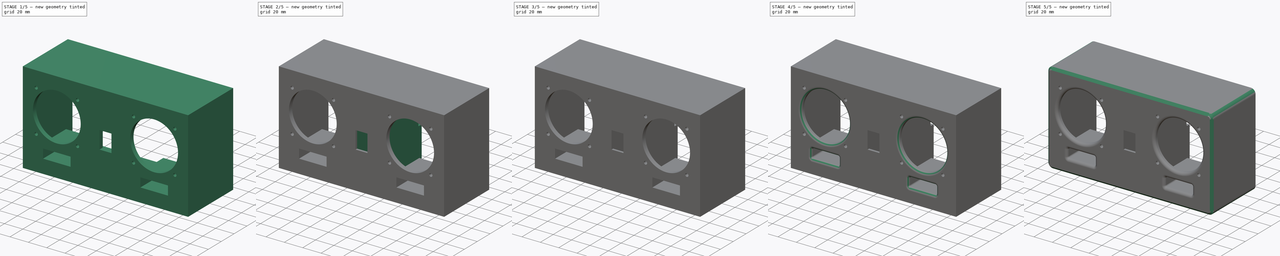
[diagram: build sequence overview — one tinted view per stage of 5, left to right]
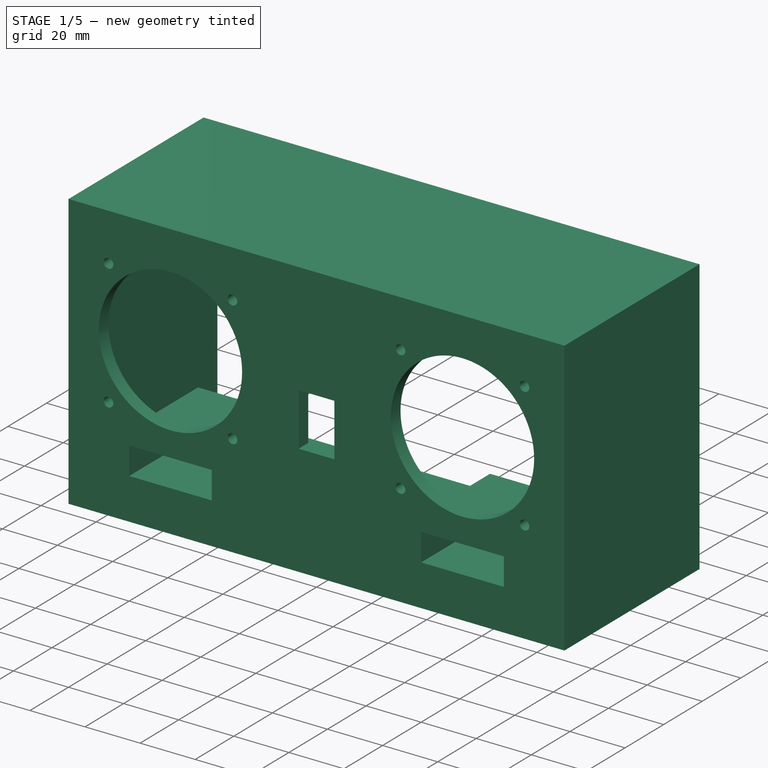
[diagram: stage 1 of 5 — iso view after this stage's code; geometry added in this stage tinted green]
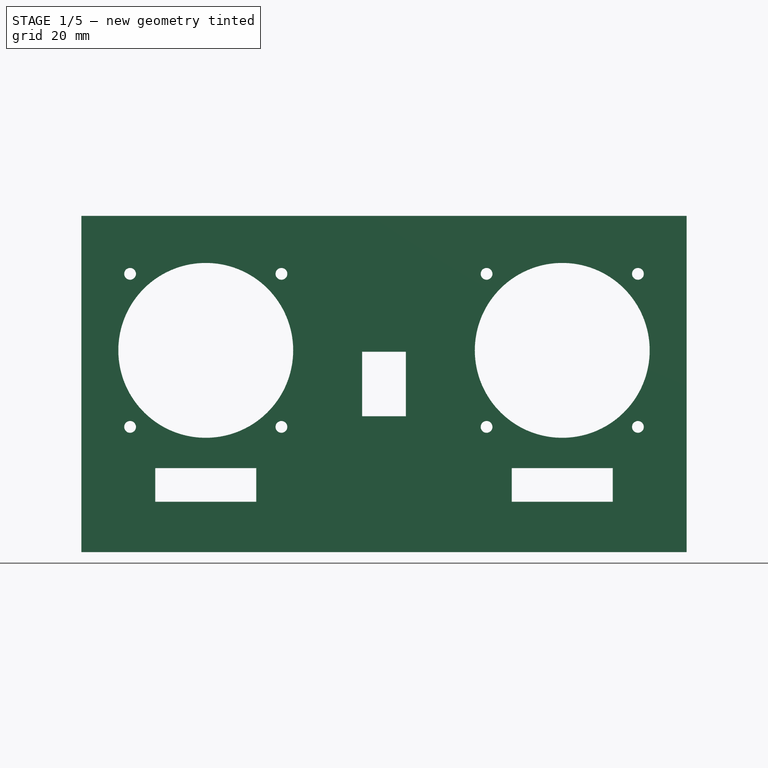
[diagram: stage 1 of 5 — front view after this stage's code; geometry added in this stage tinted green]
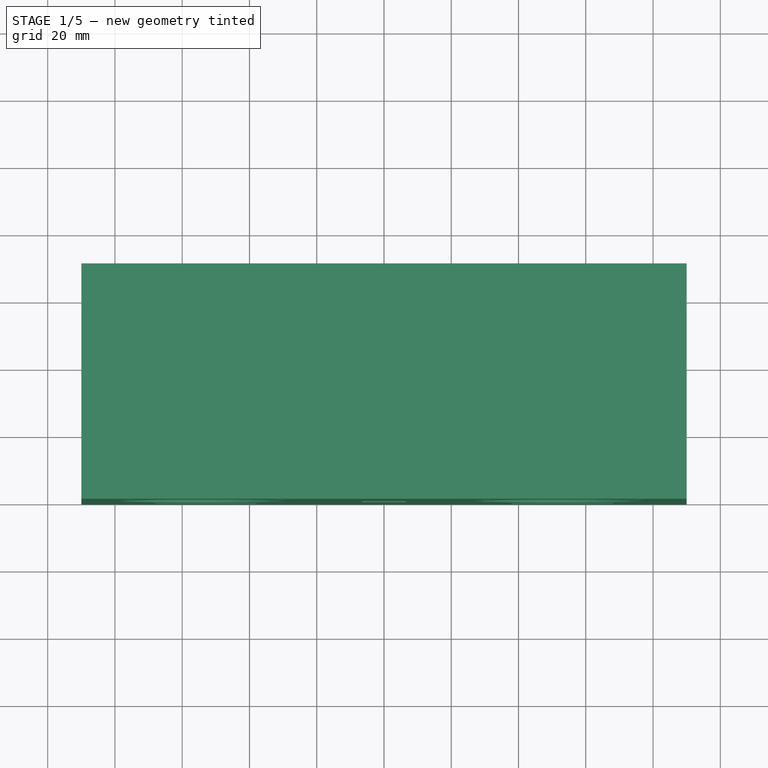
[diagram: stage 1 of 5 — top view after this stage's code; geometry added in this stage tinted green]
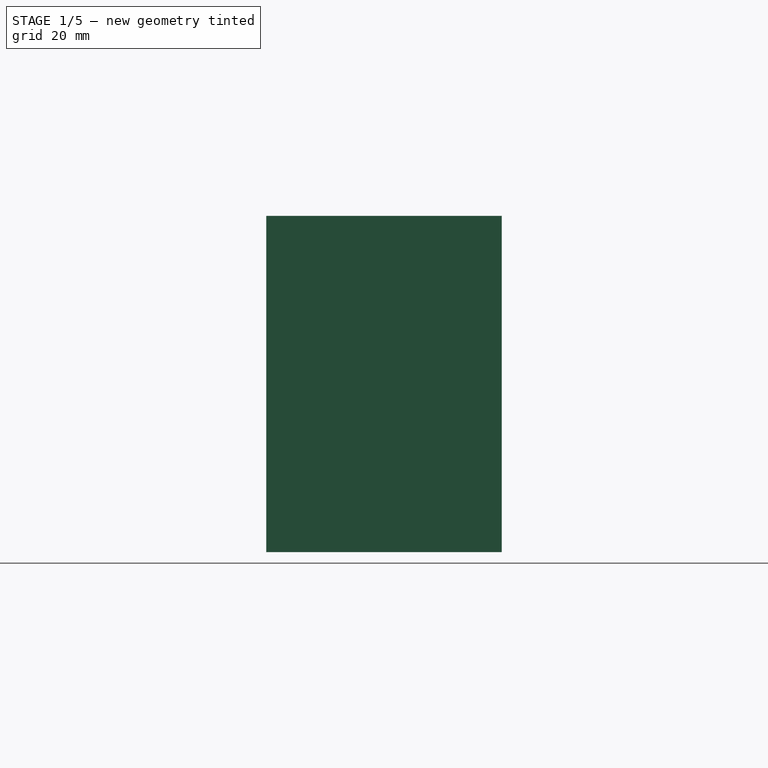
[diagram: stage 1 of 5 — right view after this stage's code; geometry added in this stage tinted green]
FCSTD DOCUMENT  (FreeCAD 1.0R39109 (Git))
Label: aiyima_new_body_finalize_foot_re
License: All rights reserved
LicenseURL: https://en.wikipedia.org/wiki/All_rights_reserved
objects: Sketcher::SketchObject×13, PartDesign::Pocket×8, PartDesign::Pad×5, PartDesign::Fillet×5, PartDesign::Chamfer×1, PartDesign::Body×1
note: 84 computed .brp shape members not serialized (recipe doc carries the construction recipe); baked Part::Feature solids carry a one-line shape summary decoded from their .brp

FEATURE [Sketcher::SketchObject] Sketch  label="Sketch_body"
  ArcFitTolerance = 1e-06
  AttachmentSupport = -> [XZ_Plane]
  FullyConstrained = true
  MakeInternals = false
  MapMode = 5
  Placement = pos=(0,0,0) rot=(1,0,0;1.5708rad)
  sketch-geometry (5):
    g0: LineSegment StartX=-90 StartY=-50 StartZ=0 EndX=90 EndY=-50 EndZ=0
    g1: LineSegment StartX=90 StartY=-50 StartZ=0 EndX=90 EndY=50 EndZ=0
    g2: LineSegment StartX=90 StartY=50 StartZ=0 EndX=-90 EndY=50 EndZ=0
    g3: LineSegment StartX=-90 StartY=50 StartZ=0 EndX=-90 EndY=-50 EndZ=0
    g4: GeomPoint [constr] X=0 Y=0 Z=0
  constraints (12):
    c: Coincident(g0,g1)
    c: Coincident(g1,g2)
    c: Coincident(g2,g3)
    c: Coincident(g3,g0)
    c: Horizontal(g0)
    c: Horizontal(g2)
    c: Vertical(g1)
    c: Vertical(g3)
    c: Symmetric(g2,g0,g4)
    c: Distance(g1,g3) = 180
    c: Distance(g0,g2) = 100
    c: Coincident(g4,g-1)
FEATURE [PartDesign::Pad] Pad  label="body"
  Direction = (0,-1,2e-16)
  Length = 70
  Length2 = 10
  Placement = pos=(0,0,0) rot=(1,0,0;1.5708rad)
  Profile = -> Sketch
  ReferenceAxis = -> Sketch [N_Axis]
  Refine = true
  Reversed = true
  Suppressed = false
  Type = 0
FEATURE [Sketcher::SketchObject] Sketch001  label="Sketch_inner"
  ArcFitTolerance = 1e-06
  AttachmentSupport = -> [Pad]
  FullyConstrained = true
  MakeInternals = false
  MapMode = 5
  Placement = pos=(0,70,0) rot=(-1,0,0;1.5708rad)
  sketch-geometry (5):
    g0: LineSegment StartX=-85 StartY=-45 StartZ=0 EndX=85 EndY=-45 EndZ=0
    g1: LineSegment StartX=85 StartY=-45 StartZ=0 EndX=85 EndY=45 EndZ=0
    g2: LineSegment StartX=85 StartY=45 StartZ=0 EndX=-85 EndY=45 EndZ=0
    g3: LineSegment StartX=-85 StartY=45 StartZ=0 EndX=-85 EndY=-45 EndZ=0
    g4: GeomPoint [constr] X=0 Y=0 Z=0
  constraints (12):
    c: Coincident(g0,g1)
    c: Coincident(g1,g2)
    c: Coincident(g2,g3)
    c: Coincident(g3,g0)
    c: Horizontal(g0)
    c: Horizontal(g2)
    c: Vertical(g1)
    c: Vertical(g3)
    c: Symmetric(g2,g0,g4)
    c: Distance(g1,g3) = 170
    c: Distance(g0,g2) = 90
    c: Coincident(g4,g-1)
FEATURE [PartDesign::Pocket] Pocket  label="inner"
  BaseFeature = -> Pad
  Direction = (0,-1,-2e-16)
  Length = 65
  Length2 = 5
  Placement = pos=(0,0,0) rot=(1,0,0;1.5708rad)
  Profile = -> Sketch001
  ReferenceAxis = -> Sketch001 [N_Axis]
  Refine = true
  Suppressed = false
  Type = 0
FEATURE [Sketcher::SketchObject] Sketch002  label="Sketch_hole_front_spk_duct"
  ArcFitTolerance = 1e-06
  AttachmentSupport = -> [Pocket]
  FullyConstrained = true
  MakeInternals = false
  MapMode = 5
  Placement = pos=(0,0,0) rot=(1,0,0;1.5708rad)
  sketch-geometry (37):
    g0: Circle CenterX=-53 CenterY=10 CenterZ=0 NormalX=0 NormalY=0 NormalZ=1 AngleXU=0 Radius=26
    g1: Circle CenterX=-75.5 CenterY=32.7541 CenterZ=0 NormalX=0 NormalY=0 NormalZ=1 AngleXU=0 Radius=1.75
    g2: LineSegment [constr] StartX=-53 StartY=10 StartZ=0 EndX=-53 EndY=36 EndZ=0
    g3: Circle CenterX=-30.5 CenterY=-12.7541 CenterZ=0 NormalX=0 NormalY=0 NormalZ=1 AngleXU=0 Radius=1.75
    g4: Circle CenterX=-30.5 CenterY=32.7541 CenterZ=0 NormalX=0 NormalY=0 NormalZ=1 AngleXU=0 Radius=1.75
    g5: Circle CenterX=-75.5 CenterY=-12.7541 CenterZ=0 NormalX=0 NormalY=0 NormalZ=1 AngleXU=0 Radius=1.75
    g6: LineSegment [constr] StartX=-80.5 StartY=-17.5 StartZ=0 EndX=-25.5 EndY=-17.5 EndZ=0
    g7: LineSegment [constr] StartX=-25.5 StartY=-17.5 StartZ=0 EndX=-25.5 EndY=37.5 EndZ=0
    g8: LineSegment [constr] StartX=-25.5 StartY=37.5 StartZ=0 EndX=-80.5 EndY=37.5 EndZ=0
    g9: LineSegment [constr] StartX=-80.5 StartY=37.5 StartZ=0 EndX=-80.5 EndY=-17.5 EndZ=0
    g10: GeomPoint [constr] X=-53 Y=10 Z=0
    g11: LineSegment StartX=-68 StartY=-35 StartZ=0 EndX=-38 EndY=-35 EndZ=0
    g12: LineSegment StartX=-38 StartY=-35 StartZ=0 EndX=-38 EndY=-25 EndZ=0
    g13: LineSegment StartX=-38 StartY=-25 StartZ=0 EndX=-68 EndY=-25 EndZ=0
    g14: LineSegment StartX=-68 StartY=-25 StartZ=0 EndX=-68 EndY=-35 EndZ=0
    g15: GeomPoint [constr] X=-53 Y=-30 Z=0
    g16: Circle CenterX=53 CenterY=10 CenterZ=0 NormalX=0 NormalY=0 NormalZ=1 AngleXU=0 Radius=26
    g17: Circle CenterX=75.5 CenterY=32.7541 CenterZ=0 NormalX=0 NormalY=0 NormalZ=1 AngleXU=0 Radius=1.75
    g18: LineSegment [constr] StartX=53 StartY=10 StartZ=0 EndX=53 EndY=36 EndZ=0
    g19: Circle CenterX=30.5 CenterY=-12.7541 CenterZ=0 NormalX=0 NormalY=0 NormalZ=1 AngleXU=0 Radius=1.75
    g20: Circle CenterX=30.5 CenterY=32.7541 CenterZ=0 NormalX=0 NormalY=0 NormalZ=1 AngleXU=0 Radius=1.75
    g21: Circle CenterX=75.5 CenterY=-12.7541 CenterZ=0 NormalX=0 NormalY=0 NormalZ=1 AngleXU=0 Radius=1.75
    g22: LineSegment [constr] StartX=80.5 StartY=-17.5 StartZ=0 EndX=25.5 EndY=-17.5 EndZ=0
    g23: LineSegment [constr] StartX=25.5 StartY=-17.5 StartZ=0 EndX=25.5 EndY=37.5 EndZ=0
    g24: LineSegment [constr] StartX=25.5 StartY=37.5 StartZ=0 EndX=80.5 EndY=37.5 EndZ=0
    g25: LineSegment [constr] StartX=80.5 StartY=37.5 StartZ=0 EndX=80.5 EndY=-17.5 EndZ=0
    g26: GeomPoint [constr] X=53 Y=10 Z=0
    g27: LineSegment StartX=68 StartY=-35 StartZ=0 EndX=38 EndY=-35 EndZ=0
    g28: LineSegment StartX=38 StartY=-35 StartZ=0 EndX=38 EndY=-25 EndZ=0
    g29: LineSegment StartX=38 StartY=-25 StartZ=0 EndX=68 EndY=-25 EndZ=0
    g30: LineSegment StartX=68 StartY=-25 StartZ=0 EndX=68 EndY=-35 EndZ=0
    g31: GeomPoint [constr] X=53 Y=-30 Z=0
    g32: LineSegment StartX=-6.5 StartY=-9.6 StartZ=0 EndX=6.5 EndY=-9.6 EndZ=0
    g33: LineSegment StartX=6.5 StartY=-9.6 StartZ=0 EndX=6.5 EndY=9.6 EndZ=0
    g34: LineSegment StartX=6.5 StartY=9.6 StartZ=0 EndX=-6.5 EndY=9.6 EndZ=0
    g35: LineSegment StartX=-6.5 StartY=9.6 StartZ=0 EndX=-6.5 EndY=-9.6 EndZ=0
    g36: GeomPoint [constr] X=0 Y=0 Z=0
  constraints (84):
    c: Diameter(g0) = 52
    c: Diameter(g1) = 3.5
    c: Distance(g1,g0) = 32
    c: Distance(g2) = 26
    c: Vertical(g2)
    c: Coincident(g2,g0)
    c: Distance(g1,g2) = 22.5
    c: Equal(g1,g3)
    c: Symmetric(g1,g3,g0)
    c: Equal(g1,g4)
    c: Symmetric(g1,g4,g2)
    c: Equal(g3,g5)
    c: Symmetric(g3,g5,g2)
    c: Coincident(g6,g7)
    c: Coincident(g7,g8)
    c: Coincident(g8,g9)
    c: Coincident(g9,g6)
    c: Horizontal(g6)
    c: Horizontal(g8)
    c: Vertical(g7)
    c: Vertical(g9)
    c: Symmetric(g8,g6,g10)
    c: Distance(g7,g9) = 55
    c: Distance(g6,g8) = 55
    c: Coincident(g10,g0)
    c: DistanceX(g0,g-1) = 53
    c: DistanceY(g-1,g0) = 10
    c: Coincident(g11,g12)
    c: Coincident(g12,g13)
    c: Coincident(g13,g14)
    c: Coincident(g14,g11)
    c: Horizontal(g11)
    c: Horizontal(g13)
    c: Vertical(g12)
    c: Vertical(g14)
    c: Symmetric(g13,g11,g15)
    c: Distance(g12,g14) = 30
    c: Distance(g11,g13) = 10
    c: Vertical(g10,g15)
    c: DistanceY(g15,g0) = 40
    c: Equal(g0,g16)
    c: Symmetric(g0,g16,g-2)
    c: Equal(g1,g17)
    c: Symmetric(g1,g17,g-2)
    c: Symmetric(g2,g18,g-2)
    c: Symmetric(g2,g18,g-2)
    c: Equal(g3,g19)
    c: Symmetric(g3,g19,g-2)
    c: Equal(g4,g20)
    c: Symmetric(g4,g20,g-2)
    c: Equal(g5,g21)
    c: Symmetric(g5,g21,g-2)
    c: Symmetric(g6,g22,g-2)
    c: Symmetric(g6,g22,g-2)
    c: Symmetric(g7,g23,g-2)
    c: Symmetric(g7,g23,g-2)
    c: Symmetric(g8,g24,g-2)
    c: Symmetric(g8,g24,g-2)
    c: Symmetric(g9,g25,g-2)
    c: Symmetric(g9,g25,g-2)
    c: Symmetric(g10,g26,g-2)
    c: Symmetric(g11,g27,g-2)
    c: Symmetric(g11,g27,g-2)
    c: Symmetric(g12,g28,g-2)
    c: Symmetric(g12,g28,g-2)
    c: Symmetric(g13,g29,g-2)
    c: Symmetric(g13,g29,g-2)
    c: Symmetric(g14,g30,g-2)
    c: Symmetric(g14,g30,g-2)
    c: Symmetric(g15,g31,g-2)
    c: DistanceX(g15,g-1) = 53
    c: DistanceY(g15,g-1) = 30
    c: Coincident(g32,g33)
    c: Coincident(g33,g34)
    c: Coincident(g34,g35)
    c: Coincident(g35,g32)
    c: Horizontal(g32)
    c: Horizontal(g34)
    c: Vertical(g33)
    c: Vertical(g35)
    c: Symmetric(g34,g32,g36)
    c: Distance(g33,g35) = 13
    c: Distance(g32,g34) = 19.2
    c: Coincident(g36,g-1)
FEATURE [PartDesign::Pocket] Pocket001  label="hole_front_spk_duct"
  BaseFeature = -> Pocket
  Direction = (0,1,-2e-16)
  Length = 5
  Length2 = 5
  Placement = pos=(0,0,0) rot=(1,0,0;1.5708rad)
  Profile = -> Sketch002
  ReferenceAxis = -> Sketch002 [N_Axis]
  Refine = true
  Suppressed = false
  Type = 0
FEATURE [Sketcher::SketchObject] Sketch003  label="Sketch_duct_pipe"
  ArcFitTolerance = 1e-06
  AttachmentSupport = -> [Pocket001]
  FullyConstrained = true
  MakeInternals = false
  MapMode = 5
  Placement = pos=(0,5,1.6e-15) rot=(-1,0,0;1.5708rad)
  sketch-geometry (20):
    g0: LineSegment StartX=-68 StartY=25 StartZ=0 EndX=-38 EndY=25 EndZ=0
    g1: LineSegment StartX=-38 StartY=25 StartZ=0 EndX=-38 EndY=35 EndZ=0
    g2: LineSegment StartX=-38 StartY=35 StartZ=0 EndX=-68 EndY=35 EndZ=0
    g3: LineSegment StartX=-68 StartY=35 StartZ=0 EndX=-68 EndY=25 EndZ=0
    g4: GeomPoint [constr] X=-53 Y=30 Z=0
    g5: LineSegment StartX=-71 StartY=22 StartZ=0 EndX=-35 EndY=22 EndZ=0
    g6: LineSegment StartX=-35 StartY=22 StartZ=0 EndX=-35 EndY=38 EndZ=0
    g7: LineSegment StartX=-35 StartY=38 StartZ=0 EndX=-71 EndY=38 EndZ=0
    g8: LineSegment StartX=-71 StartY=38 StartZ=0 EndX=-71 EndY=22 EndZ=0
    g9: GeomPoint [constr] X=-53 Y=30 Z=0
    g10: LineSegment StartX=68 StartY=25 StartZ=0 EndX=38 EndY=25 EndZ=0
    g11: LineSegment StartX=38 StartY=25 StartZ=0 EndX=38 EndY=35 EndZ=0
    g12: LineSegment StartX=38 StartY=35 StartZ=0 EndX=68 EndY=35 EndZ=0
    g13: LineSegment StartX=68 StartY=35 StartZ=0 EndX=68 EndY=25 EndZ=0
    g14: GeomPoint [constr] X=53 Y=30 Z=0
    g15: LineSegment StartX=71 StartY=22 StartZ=0 EndX=35 EndY=22 EndZ=0
    g16: LineSegment StartX=35 StartY=22 StartZ=0 EndX=35 EndY=38 EndZ=0
    g17: LineSegment StartX=35 StartY=38 StartZ=0 EndX=71 EndY=38 EndZ=0
    g18: LineSegment StartX=71 StartY=38 StartZ=0 EndX=71 EndY=22 EndZ=0
    g19: GeomPoint [constr] X=53 Y=30 Z=0
  constraints (43):
    c: Coincident(g0,g1)
    c: Coincident(g1,g2)
    c: Coincident(g2,g3)
    c: Coincident(g3,g0)
    c: Horizontal(g0)
    c: Horizontal(g2)
    c: Vertical(g1)
    c: Vertical(g3)
    c: Symmetric(g2,g0,g4)
    c: Distance(g1,g3) = 30
    c: Distance(g0,g2) = 10
    c: DistanceX(g4,g-1) = 53
    c: DistanceY(g-1,g4) = 30
    c: Coincident(g5,g6)
    c: Coincident(g6,g7)
    c: Coincident(g7,g8)
    c: Coincident(g8,g5)
    c: Horizontal(g5)
    c: Horizontal(g7)
    c: Vertical(g6)
    c: Vertical(g8)
    c: Symmetric(g7,g5,g9)
    c: Distance(g6,g8) = 36
    c: Distance(g5,g7) = 16
    c: Coincident(g9,g4)
    c: Symmetric(g0,g10,g-2)
    c: Symmetric(g0,g10,g-2)
    c: Symmetric(g1,g11,g-2)
    c: Symmetric(g1,g11,g-2)
    c: Symmetric(g2,g12,g-2)
    c: Symmetric(g2,g12,g-2)
    c: Symmetric(g3,g13,g-2)
    c: Symmetric(g3,g13,g-2)
    c: Symmetric(g4,g14,g-2)
    c: Symmetric(g5,g15,g-2)
    c: Symmetric(g5,g15,g-2)
    c: Symmetric(g6,g16,g-2)
    c: Symmetric(g6,g16,g-2)
    c: Symmetric(g7,g17,g-2)
    c: Symmetric(g7,g17,g-2)
    c: Symmetric(g8,g18,g-2)
    c: Symmetric(g8,g18,g-2)
    c: Symmetric(g9,g19,g-2)
FEATURE [PartDesign::Pad] Pad001  label="duct_pipe"
  BaseFeature = -> Pocket001
  Direction = (0,1,2e-16)
  Length = 35
  Length2 = 10
  Placement = pos=(0,0,0) rot=(1,0,0;1.5708rad)
  Profile = -> Sketch003
  ReferenceAxis = -> Sketch003 [N_Axis]
  Refine = true
  Suppressed = false
  Type = 0
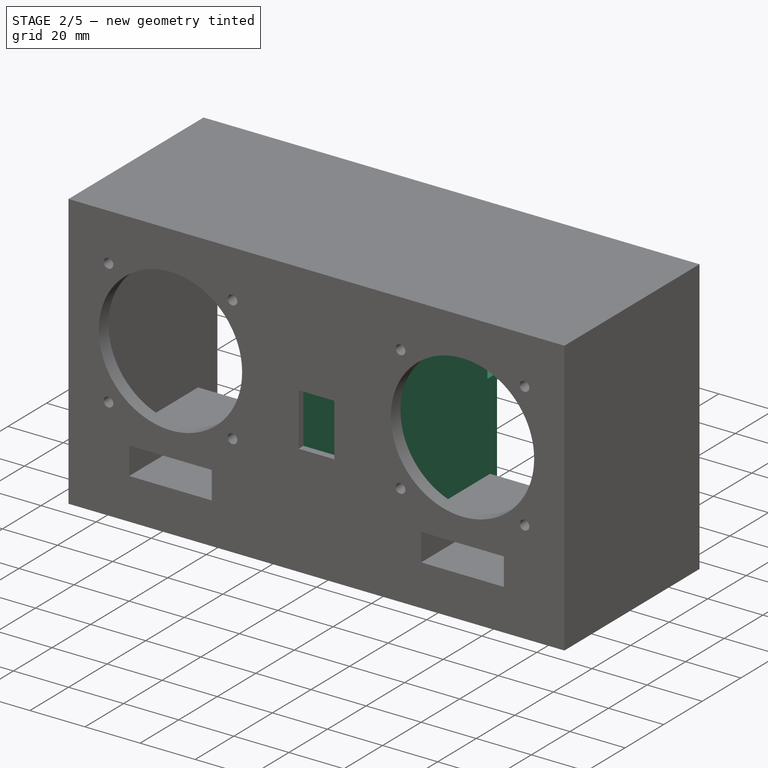
[diagram: stage 2 of 5 — iso view after this stage's code; geometry added in this stage tinted green]
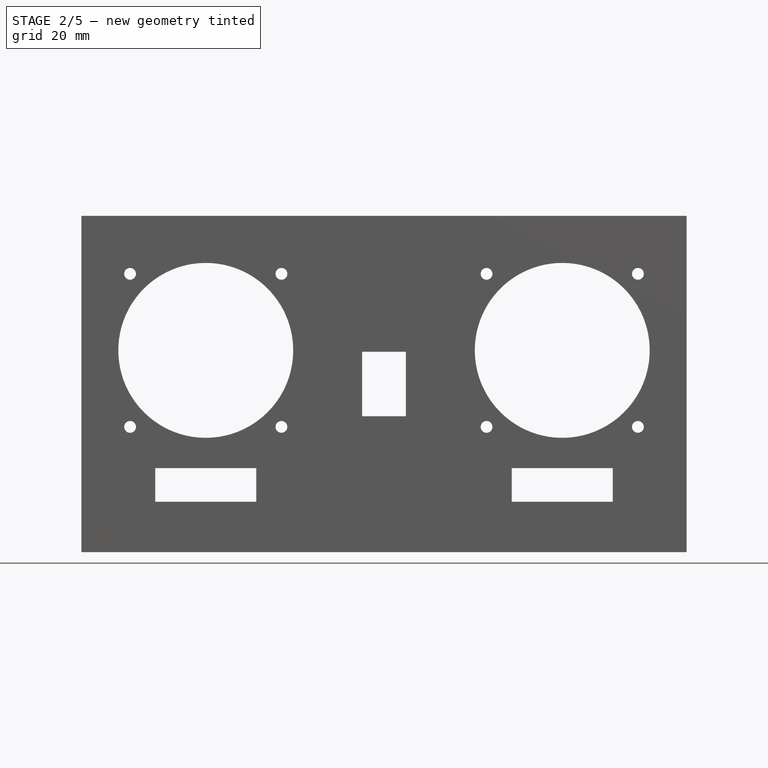
[diagram: stage 2 of 5 — front view after this stage's code; geometry added in this stage tinted green]
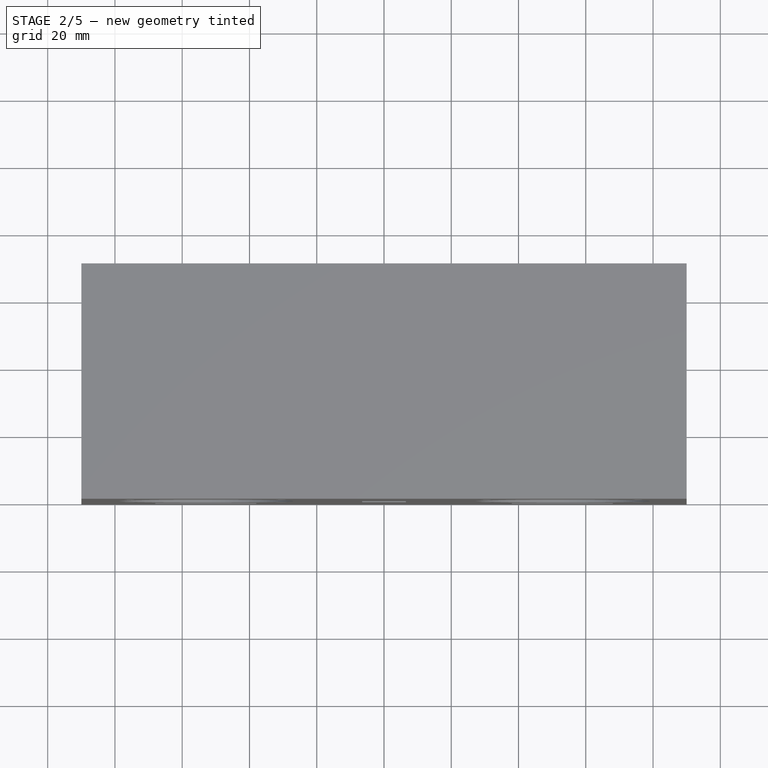
[diagram: stage 2 of 5 — top view after this stage's code; geometry added in this stage tinted green]
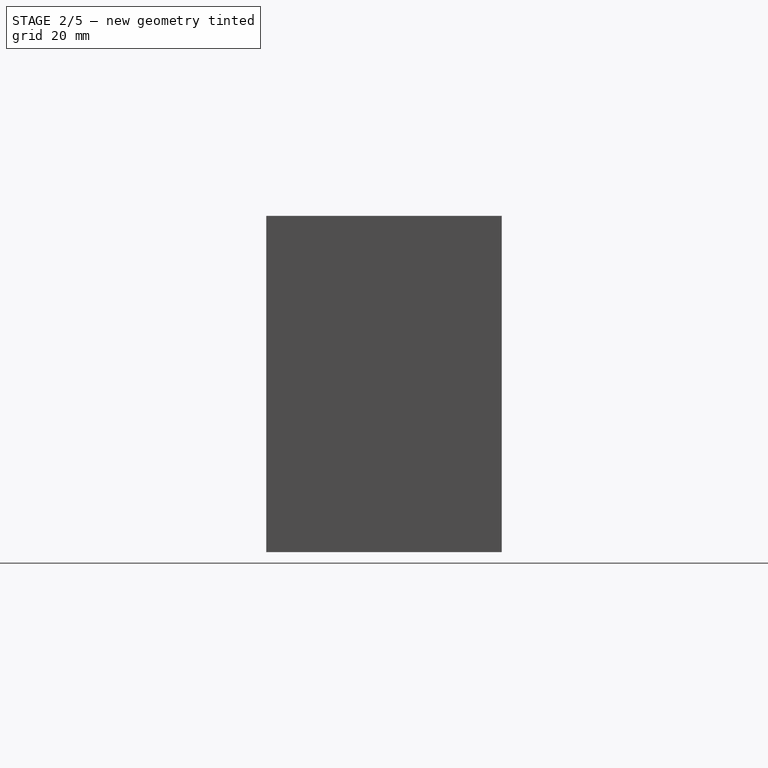
[diagram: stage 2 of 5 — right view after this stage's code; geometry added in this stage tinted green]
FEATURE [Sketcher::SketchObject] Sketch004  label="Sketch_partition_lr"
  ArcFitTolerance = 1e-06
  AttachmentSupport = -> [Pad001]
  FullyConstrained = true
  MakeInternals = false
  MapMode = 5
  Placement = pos=(0,5,1.6e-15) rot=(-1,0,0;1.5708rad)
  sketch-geometry (20):
    g0: LineSegment StartX=-20 StartY=-45 StartZ=0 EndX=-15 EndY=-45 EndZ=0
    g1: LineSegment StartX=-15 StartY=-45 StartZ=0 EndX=-15 EndY=45 EndZ=0
    g2: LineSegment StartX=-15 StartY=45 StartZ=0 EndX=-20 EndY=45 EndZ=0
    g3: LineSegment StartX=-20 StartY=45 StartZ=0 EndX=-20 EndY=-45 EndZ=0
    g4: GeomPoint [constr] X=-17.5 Y=0 Z=0
    g5: LineSegment StartX=20 StartY=-45 StartZ=0 EndX=15 EndY=-45 EndZ=0
    g6: LineSegment StartX=15 StartY=-45 StartZ=0 EndX=15 EndY=45 EndZ=0
    g7: LineSegment StartX=15 StartY=45 StartZ=0 EndX=20 EndY=45 EndZ=0
    g8: LineSegment StartX=20 StartY=45 StartZ=0 EndX=20 EndY=-45 EndZ=0
    g9: GeomPoint [constr] X=17.5 Y=0 Z=0
    g10: LineSegment StartX=-15 StartY=35 StartZ=0 EndX=-10.2 EndY=35 EndZ=0
    g11: LineSegment StartX=-10.2 StartY=35 StartZ=0 EndX=-10.2 EndY=45 EndZ=0
    g12: LineSegment StartX=-10.2 StartY=45 StartZ=0 EndX=-15 EndY=45 EndZ=0
    g13: LineSegment StartX=-15 StartY=45 StartZ=0 EndX=-15 EndY=35 EndZ=0
    g14: GeomPoint [constr] X=-12.6 Y=40 Z=0
    g15: LineSegment StartX=15 StartY=35 StartZ=0 EndX=10.2 EndY=35 EndZ=0
    g16: LineSegment StartX=10.2 StartY=35 StartZ=0 EndX=10.2 EndY=45 EndZ=0
    g17: LineSegment StartX=10.2 StartY=45 StartZ=0 EndX=15 EndY=45 EndZ=0
    g18: LineSegment StartX=15 StartY=45 StartZ=0 EndX=15 EndY=35 EndZ=0
    g19: GeomPoint [constr] X=12.6 Y=40 Z=0
  constraints (46):
    c: Coincident(g0,g1)
    c: Coincident(g1,g2)
    c: Coincident(g2,g3)
    c: Coincident(g3,g0)
    c: Horizontal(g0)
    c: Horizontal(g2)
    c: Vertical(g1)
    c: Vertical(g3)
    c: Symmetric(g2,g0,g4)
    c: Distance(g1,g3) = 5
    c: Distance(g0,g2) = 90
    c: Horizontal(g4,g-1)
    c: Distance(g-1,g3) = 20
    c: Symmetric(g0,g5,g-2)
    c: Symmetric(g0,g5,g-2)
    c: Symmetric(g1,g6,g-2)
    c: Symmetric(g1,g6,g-2)
    c: Symmetric(g2,g7,g-2)
    c: Symmetric(g2,g7,g-2)
    c: Symmetric(g3,g8,g-2)
    c: Symmetric(g3,g8,g-2)
    c: Symmetric(g4,g9,g-2)
    c: Distance(g-2,g1) = 15
    c: Coincident(g10,g11)
    c: Coincident(g11,g12)
    c: Coincident(g12,g13)
    c: Coincident(g13,g10)
    c: Horizontal(g10)
    c: Horizontal(g12)
    c: Vertical(g11)
    c: Vertical(g13)
    c: Symmetric(g12,g10,g14)
    c: Distance(g11,g13) = 4.8
    c: Distance(g10,g12) = 10
    c: Distance(g-1,g13) = 15
    c: Distance(g-1,g10) = 35
    c: Symmetric(g10,g15,g-2)
    c: Symmetric(g10,g15,g-2)
    c: Symmetric(g11,g16,g-2)
    c: Symmetric(g11,g16,g-2)
    c: Symmetric(g12,g17,g-2)
    c: Symmetric(g12,g17,g-2)
    c: Symmetric(g13,g18,g-2)
    c: Symmetric(g13,g18,g-2)
    c: Symmetric(g14,g19,g-2)
    c: Distance(g16,g11) = 20.4
FEATURE [PartDesign::Pad] Pad002  label="partition_lr"
  BaseFeature = -> Pad001
  Direction = (0,1,2e-16)
  Length = 60
  Length2 = 10
  Placement = pos=(0,0,0) rot=(1,0,0;1.5708rad)
  Profile = -> Sketch004
  ReferenceAxis = -> Sketch004 [N_Axis]
  Refine = true
  Suppressed = false
  Type = 0
FEATURE [Sketcher::SketchObject] Sketch005  label="Sketch_cablehole_right"
  ArcFitTolerance = 1e-06
  AttachmentSupport = -> [Pad002]
  FullyConstrained = true
  MakeInternals = false
  MapMode = 5
  Placement = pos=(20,0,0) rot=(0.707107,0,0.707107;3.14159rad)
  sketch-geometry (5):
    g0: LineSegment StartX=-2.5 StartY=-65 StartZ=0 EndX=2.5 EndY=-65 EndZ=0
    g1: LineSegment StartX=2.5 StartY=-65 StartZ=0 EndX=2.5 EndY=-60 EndZ=0
    g2: LineSegment StartX=2.5 StartY=-60 StartZ=0 EndX=-2.5 EndY=-60 EndZ=0
    g3: LineSegment StartX=-2.5 StartY=-60 StartZ=0 EndX=-2.5 EndY=-65 EndZ=0
    g4: GeomPoint [constr] X=0 Y=-62.5 Z=0
  constraints (13):
    c: Coincident(g0,g1)
    c: Coincident(g1,g2)
    c: Coincident(g2,g3)
    c: Coincident(g3,g0)
    c: Horizontal(g0)
    c: Horizontal(g2)
    c: Vertical(g1)
    c: Vertical(g3)
    c: Symmetric(g2,g0,g4)
    c: Distance(g1,g3) = 5
    c: Distance(g0,g2) = 5
    c: Vertical(g-1,g4)
    c: Distance(g-1,g0) = 65
FEATURE [PartDesign::Pocket] Pocket002  label="cablehole_right"
  BaseFeature = -> Pad002
  Direction = (-1,0,2e-16)
  Length = 5
  Length2 = 5
  Placement = pos=(0,0,0) rot=(1,0,0;1.5708rad)
  Profile = -> Sketch005
  ReferenceAxis = -> Sketch005 [N_Axis]
  Refine = true
  Suppressed = false
  Type = 0
FEATURE [Sketcher::SketchObject] Sketch006  label="Sketch_cablehole_left"
  ArcFitTolerance = 1e-06
  AttachmentSupport = -> [Pocket002]
  FullyConstrained = true
  MakeInternals = false
  MapMode = 5
  Placement = pos=(-20,0,0) rot=(0.707107,0,-0.707107;3.14159rad)
  sketch-geometry (5):
    g0: LineSegment StartX=-2.5 StartY=-65 StartZ=0 EndX=2.5 EndY=-65 EndZ=0
    g1: LineSegment StartX=2.5 StartY=-65 StartZ=0 EndX=2.5 EndY=-60 EndZ=0
    g2: LineSegment StartX=2.5 StartY=-60 StartZ=0 EndX=-2.5 EndY=-60 EndZ=0
    g3: LineSegment StartX=-2.5 StartY=-60 StartZ=0 EndX=-2.5 EndY=-65 EndZ=0
    g4: GeomPoint [constr] X=0 Y=-62.5 Z=0
  constraints (13):
    c: Coincident(g0,g1)
    c: Coincident(g1,g2)
    c: Coincident(g2,g3)
    c: Coincident(g3,g0)
    c: Horizontal(g0)
    c: Horizontal(g2)
    c: Vertical(g1)
    c: Vertical(g3)
    c: Symmetric(g2,g0,g4)
    c: Distance(g1,g3) = 5
    c: Distance(g0,g2) = 5
    c: Vertical(g4,g-1)
    c: Distance(g-1,g0) = 65
FEATURE [PartDesign::Pocket] Pocket003  label="cablehole_left"
  BaseFeature = -> Pocket002
  Direction = (1,0,2e-16)
  Length = 5
  Length2 = 5
  Placement = pos=(0,0,0) rot=(1,0,0;1.5708rad)
  Profile = -> Sketch006
  ReferenceAxis = -> Sketch006 [N_Axis]
  Refine = true
  Suppressed = false
  Type = 0
FEATURE [Sketcher::SketchObject] Sketch007  label="Sketch_hole_sw_mute"
  ArcFitTolerance = 1e-06
  AttachmentSupport = -> [Pocket003]
  FullyConstrained = true
  MakeInternals = false
  MapMode = 5
  Placement = pos=(0,5,1.6e-15) rot=(-1,0,0;1.5708rad)
  sketch-geometry (5):
    g0: LineSegment StartX=-9.5 StartY=-13 StartZ=0 EndX=9.5 EndY=-13 EndZ=0
    g1: LineSegment StartX=9.5 StartY=-13 StartZ=0 EndX=9.5 EndY=13 EndZ=0
    g2: LineSegment StartX=9.5 StartY=13 StartZ=0 EndX=-9.5 EndY=13 EndZ=0
    g3: LineSegment StartX=-9.5 StartY=13 StartZ=0 EndX=-9.5 EndY=-13 EndZ=0
    g4: GeomPoint [constr] X=0 Y=0 Z=0
  constraints (12):
    c: Coincident(g0,g1)
    c: Coincident(g1,g2)
    c: Coincident(g2,g3)
    c: Coincident(g3,g0)
    c: Horizontal(g0)
    c: Horizontal(g2)
    c: Vertical(g1)
    c: Vertical(g3)
    c: Symmetric(g2,g0,g4)
    c: Distance(g1,g3) = 19
    c: Distance(g0,g2) = 26
    c: Coincident(g4,g-1)
FEATURE [PartDesign::Pocket] Pocket004  label="hole_sw_mute"
  BaseFeature = -> Pocket003
  Direction = (0,-1,-2e-16)
  Length = 2.5
  Length2 = 5
  Placement = pos=(0,0,0) rot=(1,0,0;1.5708rad)
  Profile = -> Sketch007
  ReferenceAxis = -> Sketch007 [N_Axis]
  Refine = true
  Suppressed = false
  Type = 0
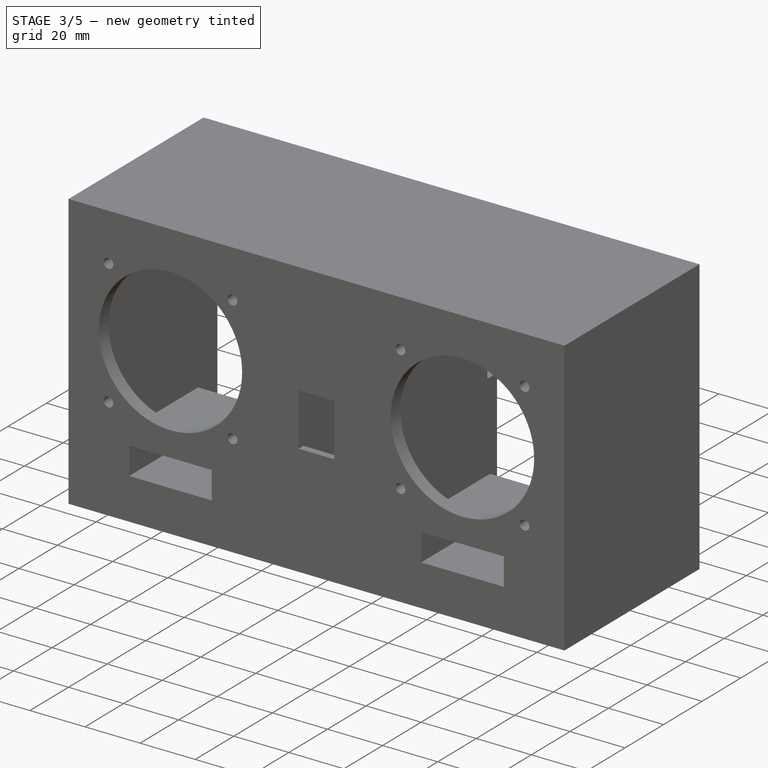
[diagram: stage 3 of 5 — iso view after this stage's code; geometry added in this stage tinted green]
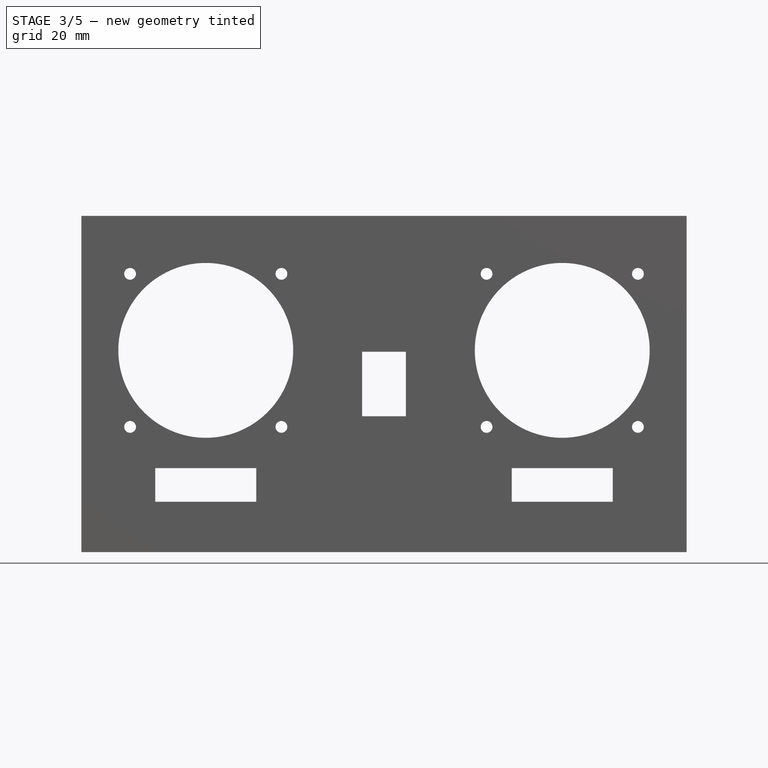
[diagram: stage 3 of 5 — front view after this stage's code; geometry added in this stage tinted green]
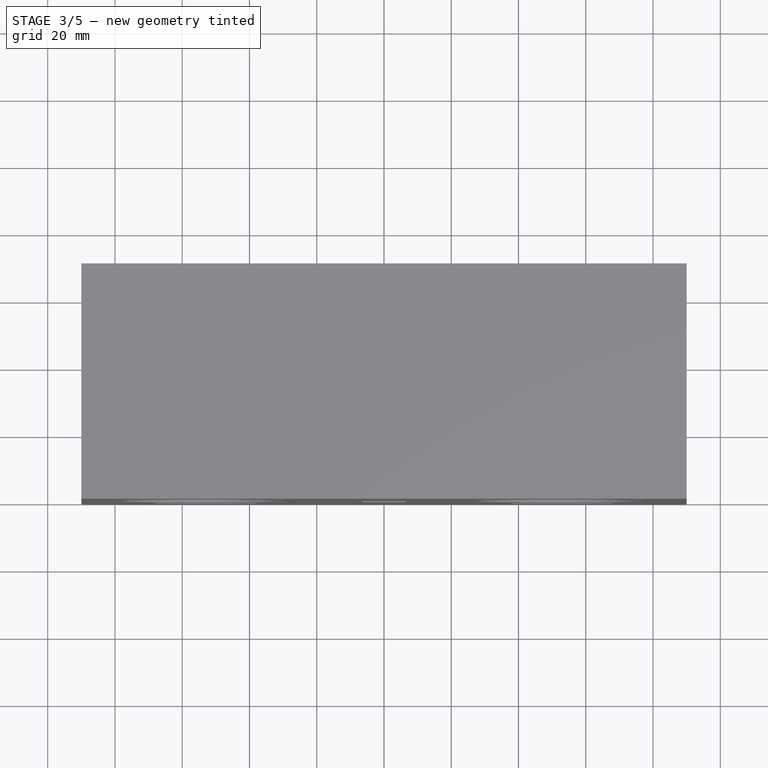
[diagram: stage 3 of 5 — top view after this stage's code; geometry added in this stage tinted green]
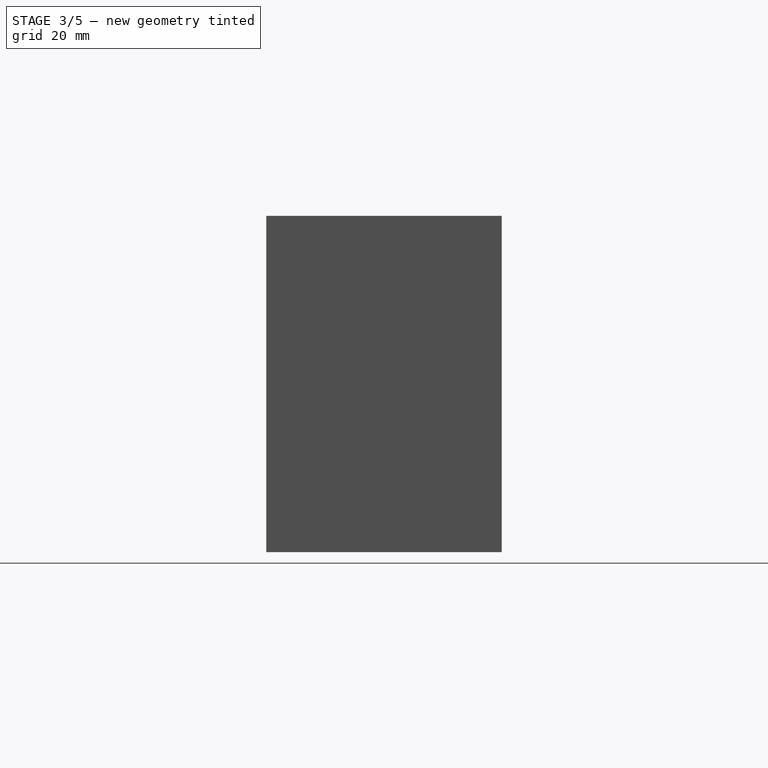
[diagram: stage 3 of 5 — right view after this stage's code; geometry added in this stage tinted green]
FEATURE [Sketcher::SketchObject] Sketch008  label="Sketch_nut_left"
  ArcFitTolerance = 1e-06
  AttachmentSupport = -> [Pocket004]
  FullyConstrained = true
  MakeInternals = false
  MapMode = 5
  Placement = pos=(-85,0,0) rot=(0.707107,0,0.707107;3.14159rad)
  sketch-geometry (20):
    g0: LineSegment StartX=38 StartY=-65 StartZ=0 EndX=45 EndY=-65 EndZ=0
    g1: LineSegment StartX=45 StartY=-65 StartZ=0 EndX=45 EndY=-61 EndZ=0
    g2: LineSegment StartX=45 StartY=-61 StartZ=0 EndX=38 EndY=-61 EndZ=0
    g3: LineSegment StartX=38 StartY=-61 StartZ=0 EndX=38 EndY=-65 EndZ=0
    g4: GeomPoint [constr] X=41.5 Y=-63 Z=0
    g5: LineSegment StartX=38 StartY=-58.5 StartZ=0 EndX=45 EndY=-58.5 EndZ=0
    g6: LineSegment StartX=45 StartY=-58.5 StartZ=0 EndX=45 EndY=-54.5 EndZ=0
    g7: LineSegment StartX=45 StartY=-54.5 StartZ=0 EndX=38 EndY=-54.5 EndZ=0
    g8: LineSegment StartX=38 StartY=-54.5 StartZ=0 EndX=38 EndY=-58.5 EndZ=0
    g9: GeomPoint [constr] X=41.5 Y=-56.5 Z=0
    g10: LineSegment StartX=-38 StartY=-65 StartZ=0 EndX=-45 EndY=-65 EndZ=0
    g11: LineSegment StartX=-45 StartY=-65 StartZ=0 EndX=-45 EndY=-61 EndZ=0
    g12: LineSegment StartX=-45 StartY=-61 StartZ=0 EndX=-38 EndY=-61 EndZ=0
    g13: LineSegment StartX=-38 StartY=-61 StartZ=0 EndX=-38 EndY=-65 EndZ=0
    g14: GeomPoint [constr] X=-41.5 Y=-63 Z=0
    g15: LineSegment StartX=-38 StartY=-58.5 StartZ=0 EndX=-45 EndY=-58.5 EndZ=0
    g16: LineSegment StartX=-45 StartY=-58.5 StartZ=0 EndX=-45 EndY=-54.5 EndZ=0
    g17: LineSegment StartX=-45 StartY=-54.5 StartZ=0 EndX=-38 EndY=-54.5 EndZ=0
    g18: LineSegment StartX=-38 StartY=-54.5 StartZ=0 EndX=-38 EndY=-58.5 EndZ=0
    g19: GeomPoint [constr] X=-41.5 Y=-56.5 Z=0
  constraints (44):
    c: Coincident(g0,g1)
    c: Coincident(g1,g2)
    c: Coincident(g2,g3)
    c: Coincident(g3,g0)
    c: Horizontal(g0)
    c: Horizontal(g2)
    c: Vertical(g1)
    c: Vertical(g3)
    c: Symmetric(g2,g0,g4)
    c: Distance(g1,g3) = 7
    c: Distance(g0,g2) = 4
    c: DistanceY(g0,g-1) = 65
    c: DistanceX(g-1,g0) = 45
    c: Coincident(g5,g6)
    c: Coincident(g6,g7)
    c: Coincident(g7,g8)
    c: Coincident(g8,g5)
    c: Horizontal(g5)
    c: Horizontal(g7)
    c: Vertical(g6)
    c: Vertical(g8)
    c: Symmetric(g7,g5,g9)
    c: Distance(g6,g8) = 7
    c: Distance(g5,g7) = 4
    c: Vertical(g4,g9)
    c: Distance(g2,g5) = 2.5
    c: Symmetric(g0,g10,g-2)
    c: Symmetric(g0,g10,g-2)
    c: Symmetric(g1,g11,g-2)
    c: Symmetric(g1,g11,g-2)
    c: Symmetric(g2,g12,g-2)
    c: Symmetric(g2,g12,g-2)
    c: Symmetric(g3,g13,g-2)
    c: Symmetric(g3,g13,g-2)
    c: Symmetric(g4,g14,g-2)
    c: Symmetric(g5,g15,g-2)
    c: Symmetric(g5,g15,g-2)
    c: Symmetric(g6,g16,g-2)
    c: Symmetric(g6,g16,g-2)
    c: Symmetric(g7,g17,g-2)
    c: Symmetric(g7,g17,g-2)
    c: Symmetric(g8,g18,g-2)
    c: Symmetric(g8,g18,g-2)
    c: Symmetric(g9,g19,g-2)
FEATURE [PartDesign::Pad] Pad003  label="nut_left"
  AlongSketchNormal = false
  BaseFeature = -> Pocket004
  Direction = (1,0,-2e-16)
  Length = 7
  Length2 = 10
  Placement = pos=(0,0,0) rot=(1,0,0;1.5708rad)
  Profile = -> Sketch008
  ReferenceAxis = -> Sketch008 [N_Axis]
  Refine = true
  Suppressed = false
  Type = 0
FEATURE [Sketcher::SketchObject] Sketch009  label="Sketch_nut_right"
  ArcFitTolerance = 1e-06
  AttachmentSupport = -> [Pad003]
  FullyConstrained = true
  MakeInternals = false
  MapMode = 5
  Placement = pos=(85,0,0) rot=(0.707107,0,-0.707107;3.14159rad)
  sketch-geometry (20):
    g0: LineSegment StartX=38 StartY=-65 StartZ=0 EndX=45 EndY=-65 EndZ=0
    g1: LineSegment StartX=45 StartY=-65 StartZ=0 EndX=45 EndY=-61 EndZ=0
    g2: LineSegment StartX=45 StartY=-61 StartZ=0 EndX=38 EndY=-61 EndZ=0
    g3: LineSegment StartX=38 StartY=-61 StartZ=0 EndX=38 EndY=-65 EndZ=0
    g4: GeomPoint [constr] X=41.5 Y=-63 Z=0
    g5: LineSegment StartX=38 StartY=-58.5 StartZ=0 EndX=45 EndY=-58.5 EndZ=0
    g6: LineSegment StartX=45 StartY=-58.5 StartZ=0 EndX=45 EndY=-54.5 EndZ=0
    g7: LineSegment StartX=45 StartY=-54.5 StartZ=0 EndX=38 EndY=-54.5 EndZ=0
    g8: LineSegment StartX=38 StartY=-54.5 StartZ=0 EndX=38 EndY=-58.5 EndZ=0
    g9: GeomPoint [constr] X=41.5 Y=-56.5 Z=0
    g10: GeomPoint [constr] X=-41.5 Y=-56.5 Z=0
    g11: LineSegment StartX=-38 StartY=-65 StartZ=0 EndX=-45 EndY=-65 EndZ=0
    g12: LineSegment StartX=-45 StartY=-65 StartZ=0 EndX=-45 EndY=-61 EndZ=0
    g13: LineSegment StartX=-45 StartY=-61 StartZ=0 EndX=-38 EndY=-61 EndZ=0
    g14: LineSegment StartX=-38 StartY=-61 StartZ=0 EndX=-38 EndY=-65 EndZ=0
    g15: GeomPoint [constr] X=-41.5 Y=-63 Z=0
    g16: LineSegment StartX=-38 StartY=-58.5 StartZ=0 EndX=-45 EndY=-58.5 EndZ=0
    g17: LineSegment StartX=-45 StartY=-58.5 StartZ=0 EndX=-45 EndY=-54.5 EndZ=0
    g18: LineSegment StartX=-45 StartY=-54.5 StartZ=0 EndX=-38 EndY=-54.5 EndZ=0
    g19: LineSegment StartX=-38 StartY=-54.5 StartZ=0 EndX=-38 EndY=-58.5 EndZ=0
  constraints (44):
    c: Coincident(g0,g1)
    c: Coincident(g1,g2)
    c: Coincident(g2,g3)
    c: Coincident(g3,g0)
    c: Horizontal(g0)
    c: Horizontal(g2)
    c: Vertical(g1)
    c: Vertical(g3)
    c: Symmetric(g2,g0,g4)
    c: Distance(g1,g3) = 7
    c: Distance(g0,g2) = 4
    c: DistanceY(g0,g-1) = 65
    c: DistanceX(g-1,g0) = 45
    c: Coincident(g5,g6)
    c: Coincident(g6,g7)
    c: Coincident(g7,g8)
    c: Coincident(g8,g5)
    c: Horizontal(g5)
    c: Horizontal(g7)
    c: Vertical(g6)
    c: Vertical(g8)
    c: Symmetric(g7,g5,g9)
    c: Distance(g6,g8) = 7
    c: Distance(g5,g7) = 4
    c: Vertical(g9,g4)
    c: Distance(g2,g5) = 2.5
    c: Symmetric(g0,g11,g-2)
    c: Symmetric(g0,g11,g-2)
    c: Symmetric(g1,g12,g-2)
    c: Symmetric(g1,g12,g-2)
    c: Symmetric(g2,g13,g-2)
    c: Symmetric(g2,g13,g-2)
    c: Symmetric(g3,g14,g-2)
    c: Symmetric(g3,g14,g-2)
    c: Symmetric(g4,g15,g-2)
    c: Symmetric(g5,g16,g-2)
    c: Symmetric(g5,g16,g-2)
    c: Symmetric(g6,g17,g-2)
    c: Symmetric(g6,g17,g-2)
    c: Symmetric(g7,g18,g-2)
    c: Symmetric(g7,g18,g-2)
    c: Symmetric(g8,g19,g-2)
    c: Symmetric(g8,g19,g-2)
    c: Symmetric(g9,g10,g-2)
FEATURE [PartDesign::Pad] Pad004  label="nut_right"
  BaseFeature = -> Pad003
  Direction = (-1,0,-2e-16)
  Length = 7
  Length2 = 10
  Placement = pos=(0,0,0) rot=(1,0,0;1.5708rad)
  Profile = -> Sketch009
  ReferenceAxis = -> Sketch009 [N_Axis]
  Refine = true
  Suppressed = false
  Type = 0
FEATURE [Sketcher::SketchObject] Sketch010  label="Sketch_hole_nut"
  ArcFitTolerance = 1e-06
  AttachmentSupport = -> [Pad004]
  FullyConstrained = true
  MakeInternals = false
  MapMode = 5
  Placement = pos=(0,65,-1.43e-14) rot=(-1,0,0;1.5708rad)
  sketch-geometry (9):
    g0: LineSegment [constr] StartX=-85 StartY=-45 StartZ=0 EndX=85 EndY=-45 EndZ=0
    g1: LineSegment [constr] StartX=85 StartY=-45 StartZ=0 EndX=85 EndY=45 EndZ=0
    g2: LineSegment [constr] StartX=85 StartY=45 StartZ=0 EndX=-85 EndY=45 EndZ=0
    g3: LineSegment [constr] StartX=-85 StartY=45 StartZ=0 EndX=-85 EndY=-45 EndZ=0
    g4: GeomPoint [constr] X=0 Y=0 Z=0
    g5: Circle CenterX=-81.5 CenterY=41.5 CenterZ=0 NormalX=0 NormalY=0 NormalZ=1 AngleXU=0 Radius=1.75
    g6: Circle CenterX=81.5 CenterY=41.5 CenterZ=0 NormalX=0 NormalY=0 NormalZ=1 AngleXU=0 Radius=1.75
    g7: Circle CenterX=-81.5 CenterY=-41.5 CenterZ=0 NormalX=0 NormalY=0 NormalZ=1 AngleXU=0 Radius=1.75
    g8: Circle CenterX=81.5 CenterY=-41.5 CenterZ=0 NormalX=0 NormalY=0 NormalZ=1 AngleXU=0 Radius=1.75
  constraints (21):
    c: Coincident(g0,g1)
    c: Coincident(g1,g2)
    c: Coincident(g2,g3)
    c: Coincident(g3,g0)
    c: Horizontal(g0)
    c: Horizontal(g2)
    c: Vertical(g1)
    c: Vertical(g3)
    c: Symmetric(g2,g0,g4)
    c: Distance(g1,g3) = 170
    c: Distance(g0,g2) = 90
    c: Coincident(g4,g-1)
    c: Diameter(g5) = 3.5
    c: Distance(g5,g3) = 3.5
    c: Distance(g5,g2) = 3.5
    c: Equal(g5,g6)
    c: Symmetric(g5,g6,g-2)
    c: Equal(g5,g7)
    c: Symmetric(g5,g7,g-1)
    c: Equal(g6,g8)
    c: Symmetric(g6,g8,g-1)
FEATURE [PartDesign::Pocket] Pocket005  label="hole_nut"
  BaseFeature = -> Pad004
  Direction = (0,-1,-2e-16)
  Length = 15
  Length2 = 5
  Placement = pos=(0,0,0) rot=(1,0,0;1.5708rad)
  Profile = -> Sketch010
  ReferenceAxis = -> Sketch010 [N_Axis]
  Refine = true
  Suppressed = false
  Type = 0
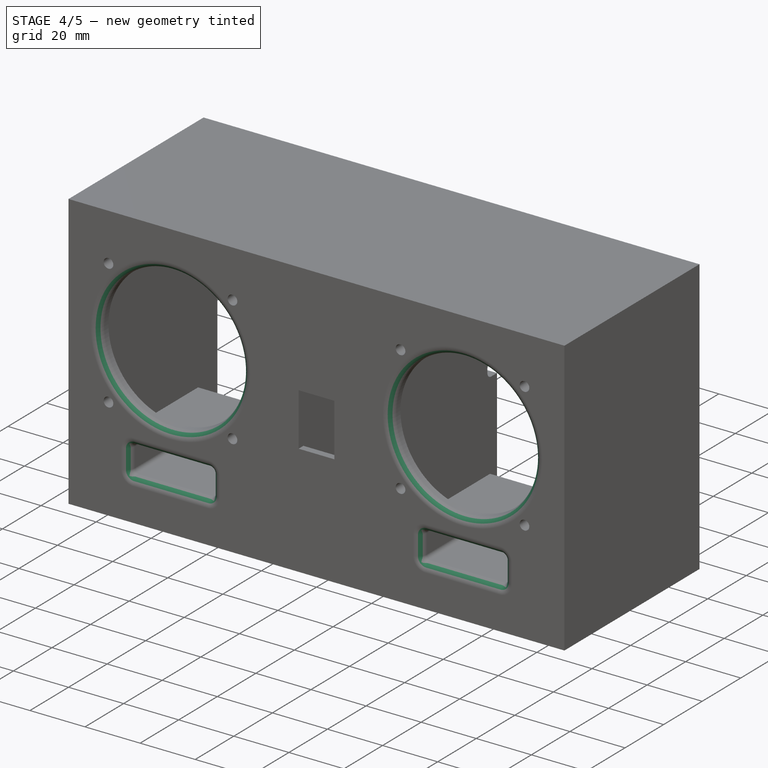
[diagram: stage 4 of 5 — iso view after this stage's code; geometry added in this stage tinted green]
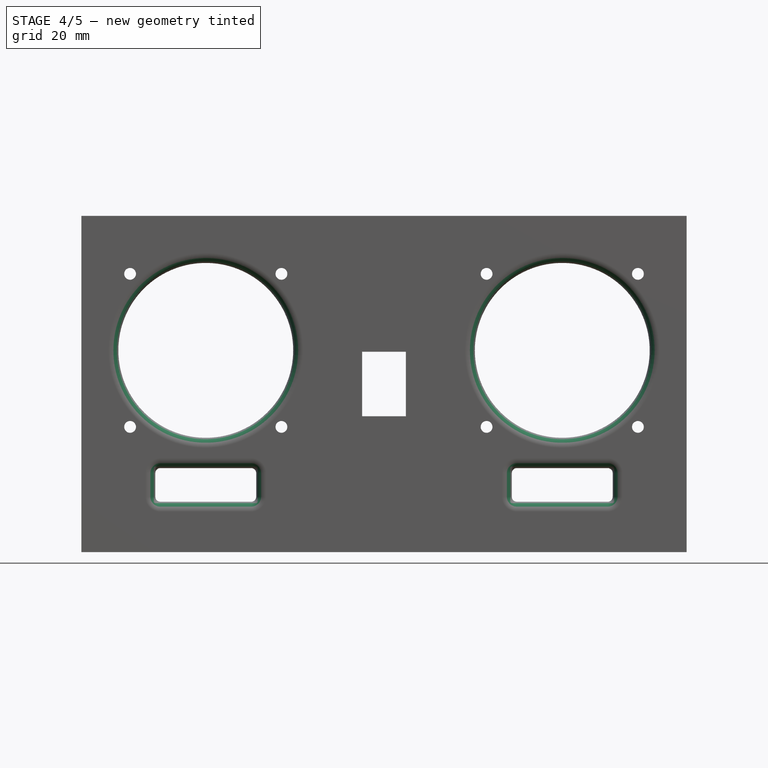
[diagram: stage 4 of 5 — front view after this stage's code; geometry added in this stage tinted green]
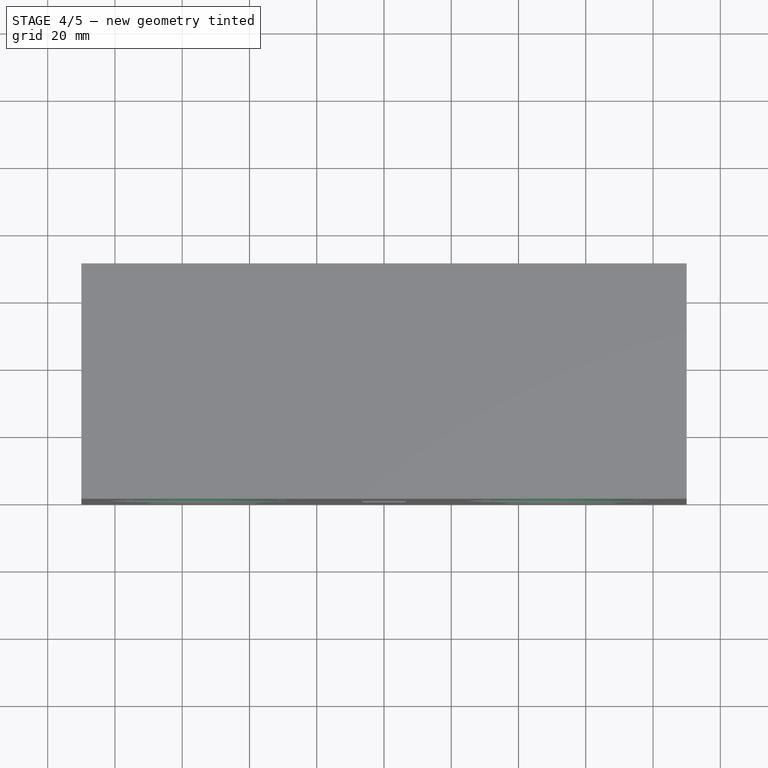
[diagram: stage 4 of 5 — top view after this stage's code; geometry added in this stage tinted green]
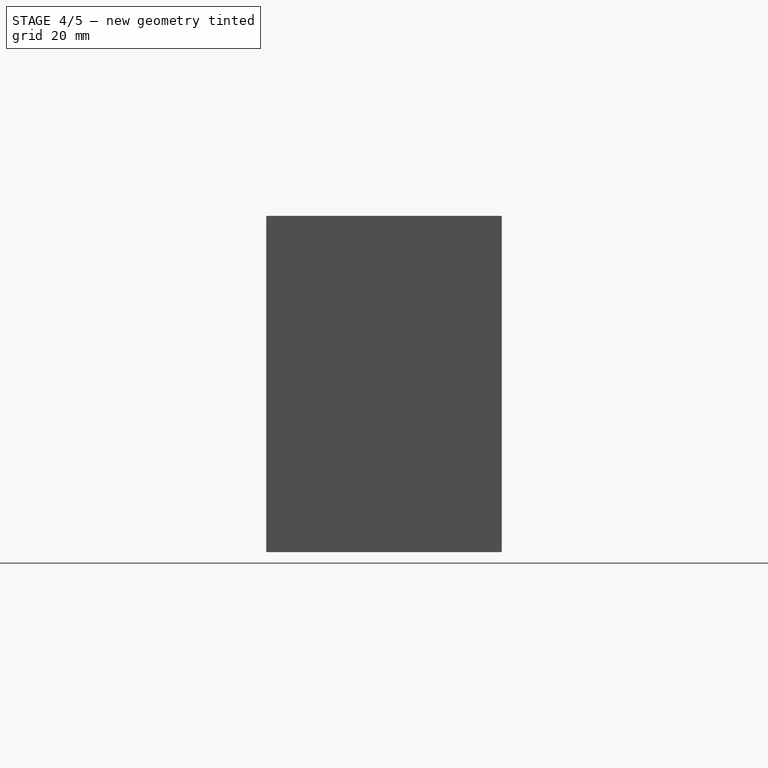
[diagram: stage 4 of 5 — right view after this stage's code; geometry added in this stage tinted green]
FEATURE [PartDesign::Fillet] Fillet  label="Fillet_duct_pipe"
  Base = -> Pocket005 [Edge67,Edge45,Edge69,Edge39,Edge41,Edge71,Edge43,Edge73,Edge72,Edge74,Edge68,Edge70,Edge42,Edge40,Edge46,Edge44]
  BaseFeature = -> Pocket005
  Placement = pos=(0,0,0) rot=(1,0,0;1.5708rad)
  Radius = 1.5
  Refine = true
  SupportTransform = false
  Suppressed = false
  UseAllEdges = false
FEATURE [PartDesign::Fillet] Fillet001  label="Fillet_duct_inner"
  Base = -> Fillet [Edge141,Edge139,Edge127,Edge129,Edge142,Edge128,Edge130,Edge140,Edge353,Edge351,Edge354,Edge352,Edge229,Edge226,Edge181,Edge185,Edge201,Edge165,Edge169,Edge198,Edge190,Edge194,Edge223,Edge220,Edge232,Edge235,Edge209,Edge205]
  BaseFeature = -> Fillet
  Placement = pos=(0,0,0) rot=(1,0,0;1.5708rad)
  Radius = 2
  Refine = true
  SupportTransform = false
  Suppressed = false
  UseAllEdges = false
FEATURE [PartDesign::Fillet] Fillet002  label="Fillet_duct_outer"
  Base = -> Fillet001 [Edge314,Edge316,Edge318,Edge320,Edge319,Edge317,Edge315,Edge313,Edge338,Edge340,Edge341,Edge339,Edge337,Edge335,Edge334,Edge336]
  BaseFeature = -> Fillet001
  Placement = pos=(0,0,0) rot=(1,0,0;1.5708rad)
  Radius = 3
  Refine = true
  SupportTransform = false
  Suppressed = false
  UseAllEdges = false
FEATURE [PartDesign::Fillet] Fillet003  label="Fillet_spk_round"
  Base = -> Fillet002 [Edge15,Edge25]
  BaseFeature = -> Fillet002
  Placement = pos=(0,0,0) rot=(1,0,0;1.5708rad)
  Radius = 3
  Refine = true
  SupportTransform = false
  Suppressed = false
  UseAllEdges = false
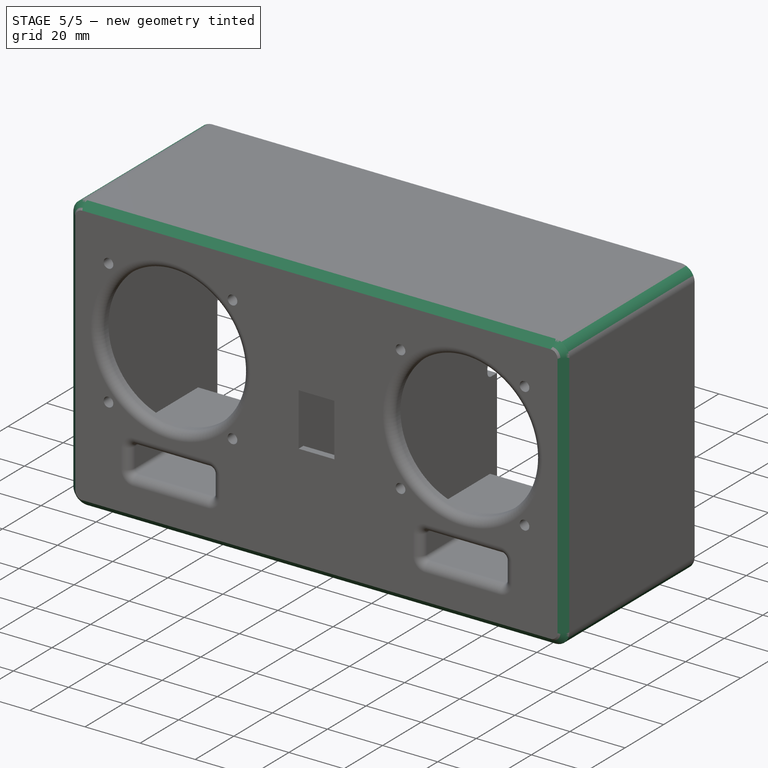
[diagram: stage 5 of 5 — iso view after this stage's code; geometry added in this stage tinted green]
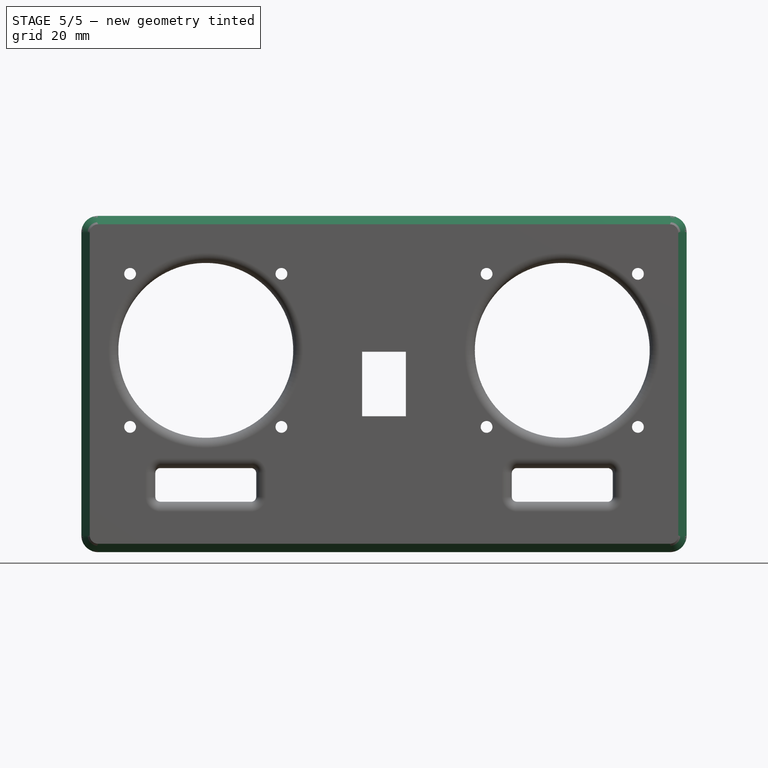
[diagram: stage 5 of 5 — front view after this stage's code; geometry added in this stage tinted green]
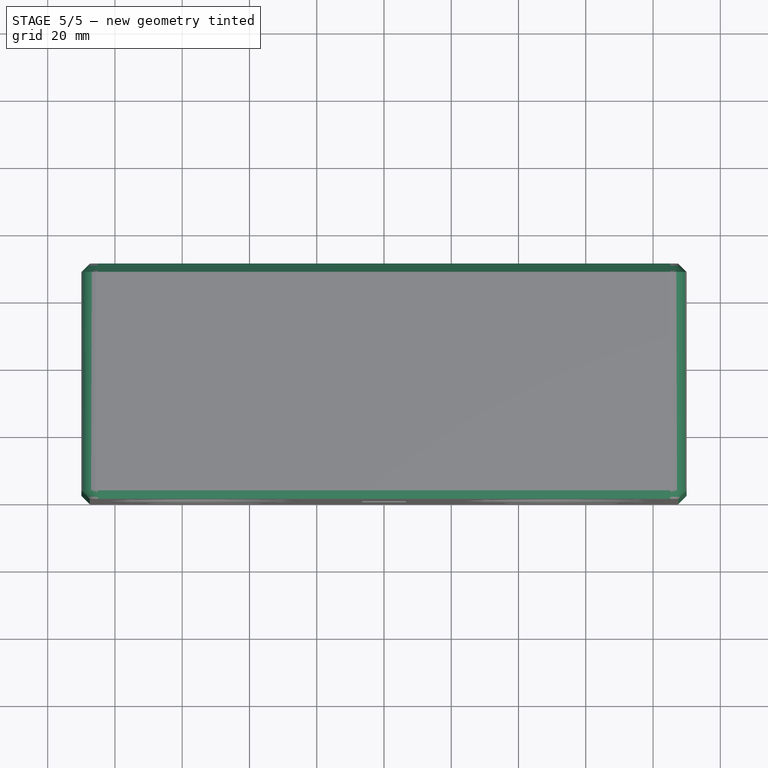
[diagram: stage 5 of 5 — top view after this stage's code; geometry added in this stage tinted green]
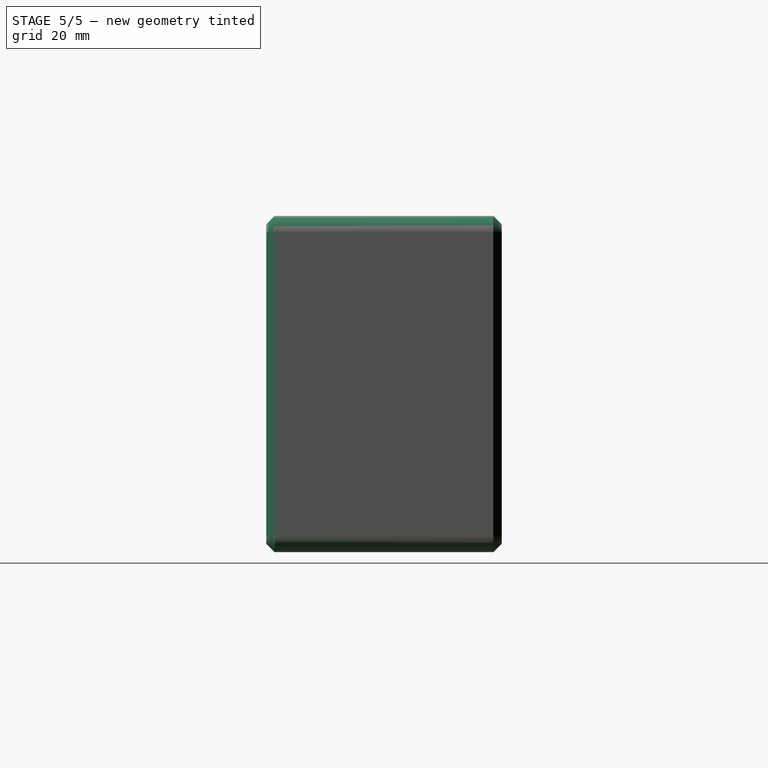
[diagram: stage 5 of 5 — right view after this stage's code; geometry added in this stage tinted green]
FEATURE [PartDesign::Fillet] Fillet004  label="Fillet_outer_side"
  Base = -> Fillet003 [Edge56,Edge58,Edge54,Edge53]
  BaseFeature = -> Fillet003
  Placement = pos=(0,0,0) rot=(1,0,0;1.5708rad)
  Radius = 5
  Refine = true
  SupportTransform = false
  Suppressed = false
  UseAllEdges = false
FEATURE [PartDesign::Chamfer] Chamfer  label="Chamfer_outer_front_back"
  Angle = 45
  Base = -> Fillet004 [Edge8,Edge7,Edge5,Edge3,Edge1,Edge6,Edge4,Edge2,Edge54,Edge51,Edge47,Edge43,Edge41,Edge45,Edge49,Edge53]
  BaseFeature = -> Fillet004
  ChamferType = 0
  FlipDirection = false
  Placement = pos=(0,0,0) rot=(1,0,0;1.5708rad)
  Refine = true
  Size = 2.5
  Size2 = 1
  SupportTransform = false
  Suppressed = false
  UseAllEdges = false
FEATURE [Sketcher::SketchObject] Sketch011
  ArcFitTolerance = 1e-06
  AttachmentSupport = -> [Chamfer]
  FullyConstrained = true
  MakeInternals = false
  MapMode = 5
  Placement = pos=(0,0,-45) rot=(0,0,1;3.14159rad)
  sketch-geometry (6):
    g0: LineSegment [constr] StartX=-10 StartY=-67 StartZ=0 EndX=10 EndY=-67 EndZ=0
    g1: LineSegment [constr] StartX=10 StartY=-67 StartZ=0 EndX=10 EndY=-22 EndZ=0
    g2: LineSegment [constr] StartX=10 StartY=-22 StartZ=0 EndX=-10 EndY=-22 EndZ=0
    g3: LineSegment [constr] StartX=-10 StartY=-22 StartZ=0 EndX=-10 EndY=-67 EndZ=0
    g4: GeomPoint [constr] X=0 Y=-44.5 Z=0
    g5: Circle CenterX=-5.5 CenterY=-39 CenterZ=0 NormalX=0 NormalY=0 NormalZ=1 AngleXU=0 Radius=1.75
  constraints (16):
    c: Coincident(g0,g1)
    c: Coincident(g1,g2)
    c: Coincident(g2,g3)
    c: Coincident(g3,g0)
    c: Horizontal(g0)
    c: Horizontal(g2)
    c: Vertical(g1)
    c: Vertical(g3)
    c: Symmetric(g2,g0,g4)
    c: Distance(g1,g3) = 20
    c: Distance(g0,g2) = 45
    c: Vertical(g4,g-1)
    c: Distance(g-1,g2) = 22
    c: Diameter(g5) = 3.5
    c: Distance(g5,g2) = 17
    c: Distance(g5,g3) = 4.5
FEATURE [PartDesign::Pocket] Pocket006  label="hole_bt_module"
  BaseFeature = -> Chamfer
  Direction = (0,0,-1)
  Length = 5
  Length2 = 5
  Placement = pos=(0,0,0) rot=(1,0,0;1.5708rad)
  Profile = -> Sketch011
  ReferenceAxis = -> Sketch011 [N_Axis]
  Refine = true
  Suppressed = false
  Type = 0
FEATURE [Sketcher::SketchObject] Sketch012  label="Sketch_concave_foot"
  ArcFitTolerance = 1e-06
  AttachmentSupport = -> [Pocket006]
  FullyConstrained = true
  MakeInternals = false
  MapMode = 5
  Placement = pos=(0,-2.2e-14,-50) rot=(1,0,0;3.14159rad)
  sketch-geometry (5):
    g0: GeomPoint [constr] X=0 Y=-35 Z=0
    g1: Circle CenterX=-74 CenterY=-13 CenterZ=0 NormalX=0 NormalY=0 NormalZ=1 AngleXU=0 Radius=8.5
    g2: Circle CenterX=74 CenterY=-13 CenterZ=0 NormalX=0 NormalY=0 NormalZ=1 AngleXU=0 Radius=8.5
    g3: Circle CenterX=74 CenterY=-57 CenterZ=0 NormalX=0 NormalY=0 NormalZ=1 AngleXU=0 Radius=8.5
    g4: Circle CenterX=-74 CenterY=-57 CenterZ=0 NormalX=0 NormalY=0 NormalZ=1 AngleXU=0 Radius=8.5
  constraints (11):
    c: PointOnObject(g0,g-2)
    c: DistanceY(g0,g-1) = 35
    c: Diameter(g1) = 17
    c: DistanceX(g1,g0) = 74
    c: DistanceY(g0,g1) = 22
    c: Equal(g1,g2)
    c: Symmetric(g1,g2,g-2)
    c: Equal(g1,g3)
    c: Symmetric(g1,g3,g0)
    c: Equal(g2,g4)
    c: Symmetric(g2,g4,g0)
FEATURE [PartDesign::Pocket] Pocket007  label="concave_foot"
  BaseFeature = -> Pocket006
  Direction = (0,0,1)
  Length = 1
  Length2 = 5
  Placement = pos=(0,0,0) rot=(1,0,0;1.5708rad)
  Profile = -> Sketch012
  ReferenceAxis = -> Sketch012 [N_Axis]
  Refine = true
  Suppressed = false
  Type = 0
FEATURE [PartDesign::Body] Body  label="몸통"
  AllowCompound = false
  Group = -> [Sketch,Pad,Sketch001,Pocket,Sketch002,Pocket001,Sketch003,Pad001,Sketch004,Pad002,Sketch005,Pocket002,Sketch006,Pocket003,Sketch007,Pocket004,Sketch008,Pad003,Sketch009,Pad004,Sketch010,Pocket005,Fillet,Fillet001,Fillet002,Fillet003,Fillet004,Chamfer,Sketch011,Pocket006,Sketch012,Pocket007]
  Origin = -> Origin
  Tip = -> Pocket007
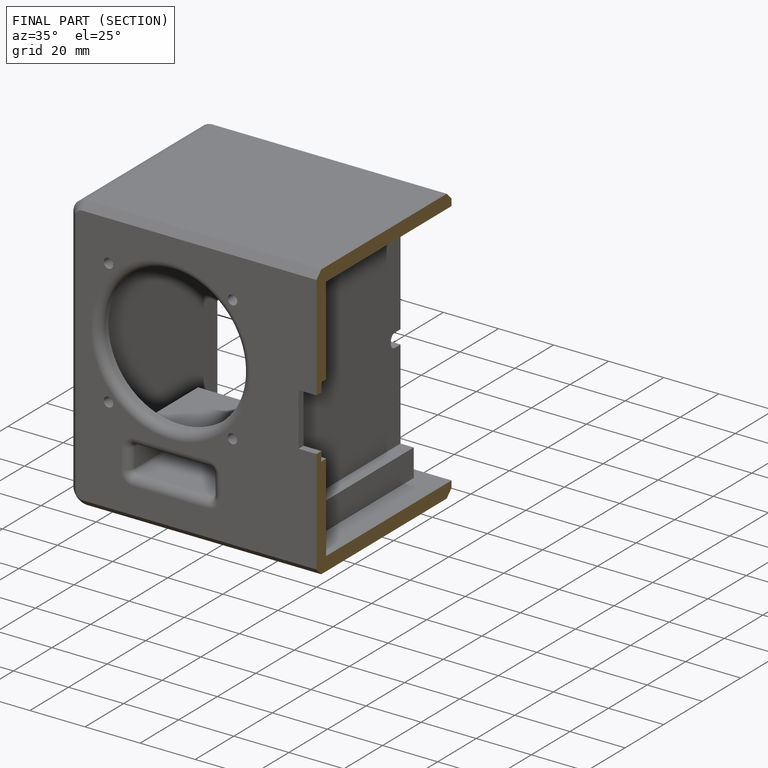
[diagram: finished part — half-section view (interior)]
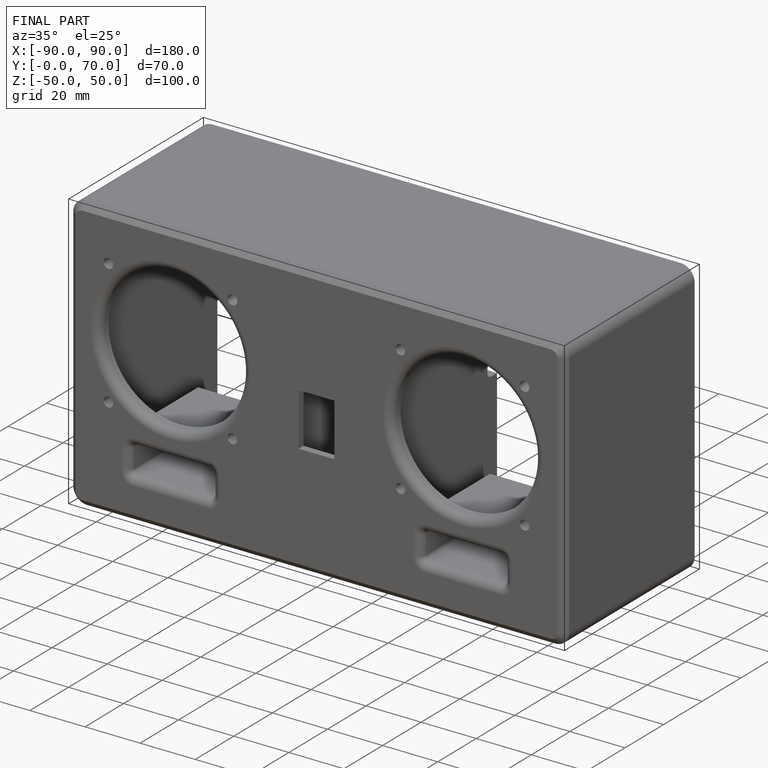
[diagram: finished part — iso view with bounding-box wireframe]
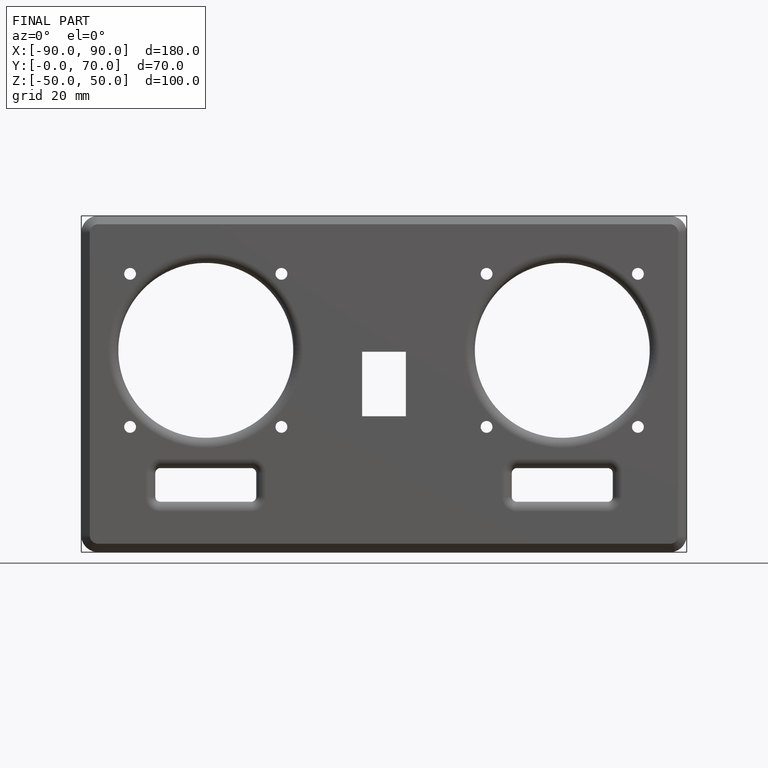
[diagram: finished part — front view with bounding-box wireframe]
